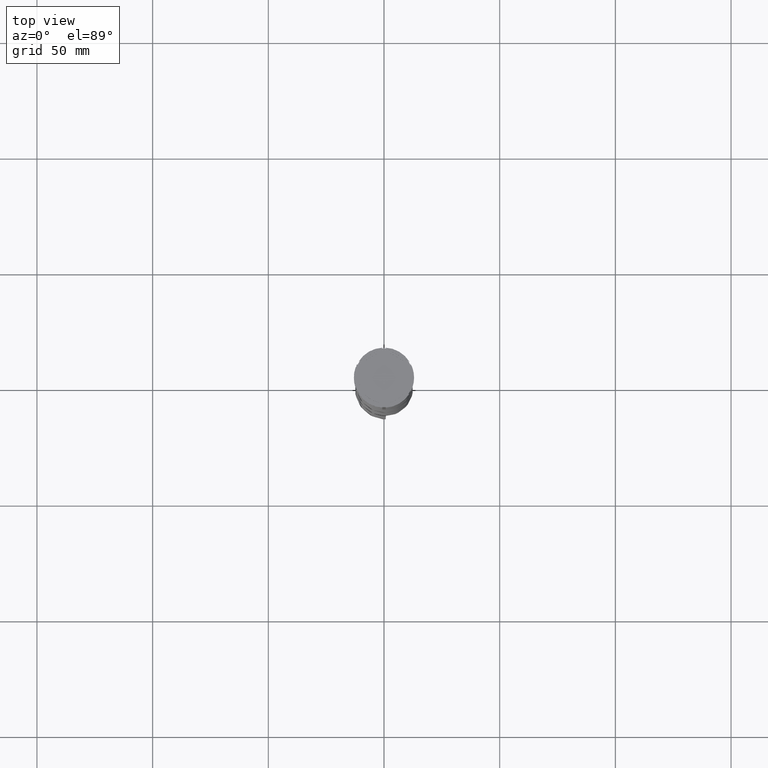
[diagram: clean part render]
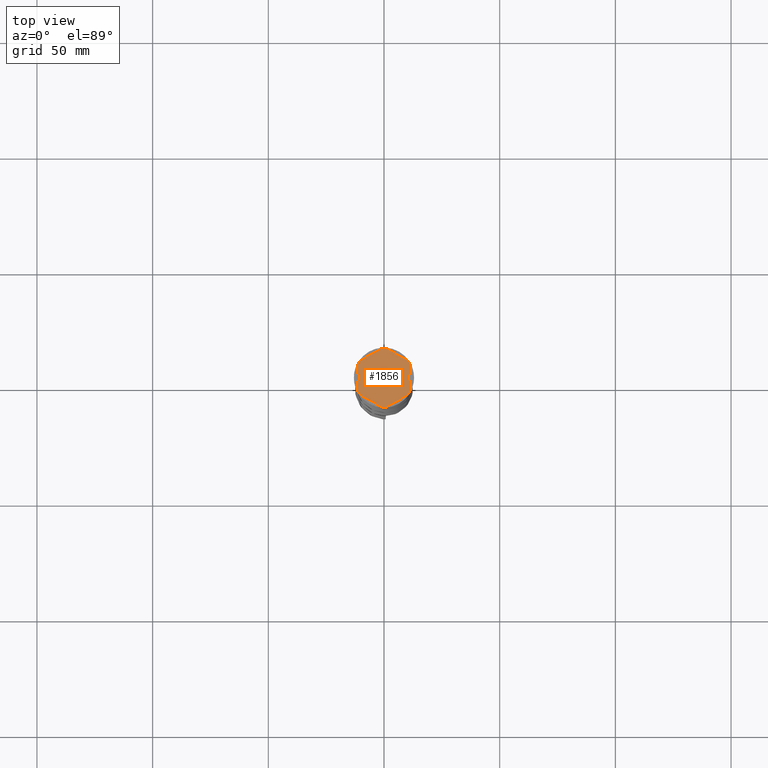
[diagram: same view with one face highlighted and labeled with its STEP entity id]
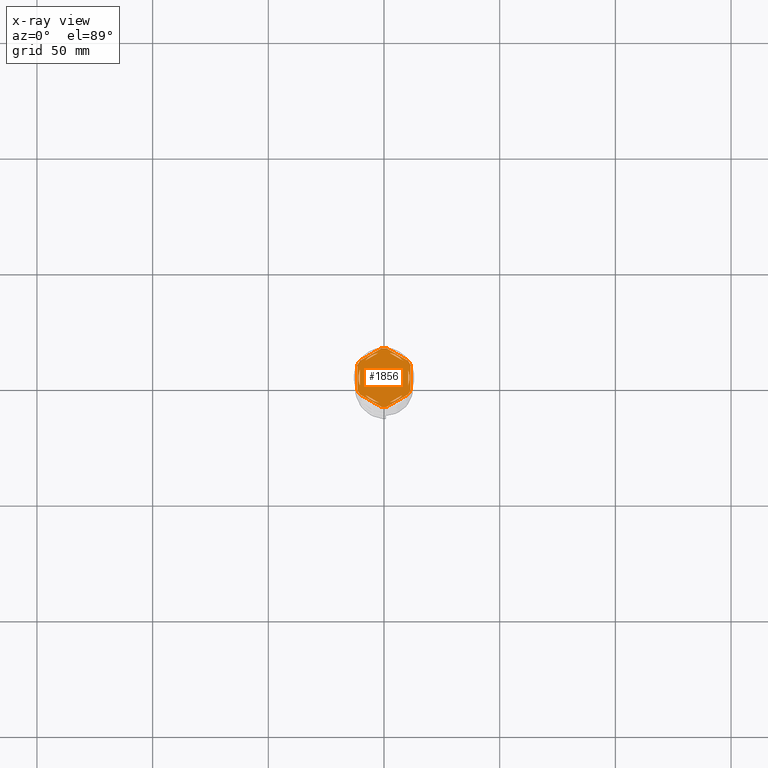
[diagram: x-ray of the same camera — body ghosted, the highlighted face saturated]
A machine part, top view. The second image highlights one B-rep face of the part: STEP entity #1856.
The next image is the same camera in x-ray: the body ghosted, the highlighted face saturated — about 0% of this face is hidden behind the body in this view.
In plain terms, the highlighted planar face has unit normal (0, 0, 1).
Its self-contained STEP definition (entity closure, byte-faithful):
#1 = VECTOR ( 'NONE', #2732, 999.9999999999998863 ) ;
#14 = VECTOR ( 'NONE', #2528, 1000.000000000000227 ) ;
#20 = ORIENTED_EDGE ( 'NONE', *, *, #1464, .F. ) ;
#43 = EDGE_CURVE ( 'NONE', #599, #1318, #3161, .T. ) ;
#91 = AXIS2_PLACEMENT_3D ( 'NONE', #1634, #3011, #3719 ) ;
#100 = CARTESIAN_POINT ( 'NONE',  ( -10.49999999999999822, -3.278719262151000624, -1.000000000000000888 ) ) ;
#103 = ORIENTED_EDGE ( 'NONE', *, *, #3396, .F. ) ;
#166 = CARTESIAN_POINT ( 'NONE',  ( 0.000000000000000000, 0.000000000000000000, -1.000000000000000000 ) ) ;
#173 = DIRECTION ( 'NONE',  ( -0.000000000000000000, -0.000000000000000000, -1.000000000000000000 ) ) ;
#187 = FACE_BOUND ( 'NONE', #1219, .T. ) ;
#195 = VERTEX_POINT ( 'NONE', #262 ) ;
#216 = ORIENTED_EDGE ( 'NONE', *, *, #3217, .F. ) ;
#220 = DIRECTION ( 'NONE',  ( -0.000000000000000000, -0.000000000000000000, -1.000000000000000000 ) ) ;
#223 = AXIS2_PLACEMENT_3D ( 'NONE', #2812, #1432, #1729 ) ;
#235 = CARTESIAN_POINT ( 'NONE',  ( 0.000000000000000000, 0.000000000000000000, -1.000000000000000000 ) ) ;
#252 = EDGE_LOOP ( 'NONE', ( #2573, #1419 ) ) ;
#262 = CARTESIAN_POINT ( 'NONE',  ( -2.410545827099867200, 10.73262637081210613, -1.000000000000000888 ) ) ;
#321 = AXIS2_PLACEMENT_3D ( 'NONE', #1000, #220, #2010 ) ;
#324 = EDGE_CURVE ( 'NONE', #2590, #3375, #443, .T. ) ;
#327 = CARTESIAN_POINT ( 'NONE',  ( -10.41690475583121689, 7.264853426459546348, -1.000000000000000000 ) ) ;
#335 = CARTESIAN_POINT ( 'NONE',  ( 11.49999999999999822, 5.388877434122992582, -1.000000000000000000 ) ) ;
#409 = EDGE_CURVE ( 'NONE', #1442, #4173, #4181, .T. ) ;
#414 = DIRECTION ( 'NONE',  ( -0.8660254037844385966, -0.5000000000000001110, 0.000000000000000000 ) ) ;
#416 = CARTESIAN_POINT ( 'NONE',  ( 2.410545827099861871, 10.73262637081210791, -1.000000000000000888 ) ) ;
#422 = CARTESIAN_POINT ( 'NONE',  ( 1.083095244168781557, 12.65373086058254160, -1.000000000000000000 ) ) ;
#424 = ORIENTED_EDGE ( 'NONE', *, *, #3630, .F. ) ;
#443 = CIRCLE ( 'NONE', #806, 11.00000000000000000 ) ;
#448 = AXIS2_PLACEMENT_3D ( 'NONE', #235, #3690, #2674 ) ;
#449 = CIRCLE ( 'NONE', #754, 11.00000000000000000 ) ;
#482 = EDGE_CURVE ( 'NONE', #599, #3599, #1248, .T. ) ;
#510 = CARTESIAN_POINT ( 'NONE',  ( 5.612359739892467248E-18, -13.27905619136138959, -1.000000000000000000 ) ) ;
#575 = DIRECTION ( 'NONE',  ( 1.000000000000000000, 0.000000000000000000, 0.000000000000000000 ) ) ;
#587 = DIRECTION ( 'NONE',  ( -0.8660254037844387076, -0.4999999999999999445, 0.000000000000000000 ) ) ;
#593 = EDGE_LOOP ( 'NONE', ( #424, #3142 ) ) ;
#595 = CIRCLE ( 'NONE', #448, 12.69999999999999929 ) ;
#599 = VERTEX_POINT ( 'NONE', #2234 ) ;
#619 = CARTESIAN_POINT ( 'NONE',  ( -10.49999999999999822, 6.062177826491068622, -1.000000000000000888 ) ) ;
#620 = CARTESIAN_POINT ( 'NONE',  ( 2.410545827099865868, -10.73262637081210791, -1.000000000000000888 ) ) ;
#622 = VERTEX_POINT ( 'NONE', #3890 ) ;
#660 = EDGE_LOOP ( 'NONE', ( #3230, #3943 ) ) ;
#689 = EDGE_CURVE ( 'NONE', #3076, #3619, #1468, .T. ) ;
#698 = DIRECTION ( 'NONE',  ( 0.000000000000000000, 0.000000000000000000, 1.000000000000000000 ) ) ;
#702 = DIRECTION ( 'NONE',  ( 1.000000000000000000, 0.000000000000000000, 0.000000000000000000 ) ) ;
#710 = LINE ( 'NONE', #967, #3503 ) ;
#746 = DIRECTION ( 'NONE',  ( 0.000000000000000000, 0.000000000000000000, 1.000000000000000000 ) ) ;
#754 = AXIS2_PLACEMENT_3D ( 'NONE', #2849, #2514, #2175 ) ;
#767 = EDGE_CURVE ( 'NONE', #3617, #1318, #595, .T. ) ;
#806 = AXIS2_PLACEMENT_3D ( 'NONE', #2431, #698, #3491 ) ;
#815 = CARTESIAN_POINT ( 'NONE',  ( -11.00000000000000000, 0.000000000000000000, -1.000000000000000000 ) ) ;
#841 = CARTESIAN_POINT ( 'NONE',  ( 10.49999999999999467, -3.278719262151014835, -1.000000000000000888 ) ) ;
#886 = VECTOR ( 'NONE', #3294, 1000.000000000000000 ) ;
#890 = DIRECTION ( 'NONE',  ( 0.000000000000000000, 0.000000000000000000, 1.000000000000000000 ) ) ;
#894 = ORIENTED_EDGE ( 'NONE', *, *, #482, .F. ) ;
#897 = ORIENTED_EDGE ( 'NONE', *, *, #43, .T. ) ;
#967 = CARTESIAN_POINT ( 'NONE',  ( 11.50000000000000000, 6.639528095680698350, -1.000000000000000000 ) ) ;
#976 = LINE ( 'NONE', #4406, #3071 ) ;
#995 = DIRECTION ( 'NONE',  ( 1.000000000000000000, -1.776356839400250465E-14, 0.000000000000000000 ) ) ;
#1000 = CARTESIAN_POINT ( 'NONE',  ( 0.000000000000000000, 0.000000000000000000, -1.000000000000000000 ) ) ;
#1087 = CARTESIAN_POINT ( 'NONE',  ( 0.000000000000000000, 13.27905619136138959, -1.000000000000000000 ) ) ;
#1134 = CARTESIAN_POINT ( 'NONE',  ( -11.50000000000000000, 6.639528095680691244, -1.000000000000000000 ) ) ;
#1215 = CARTESIAN_POINT ( 'NONE',  ( 10.41690475583121867, -7.264853426459537467, -1.000000000000000000 ) ) ;
#1219 = EDGE_LOOP ( 'NONE', ( #20, #3004, #3156 ) ) ;
#1233 = DIRECTION ( 'NONE',  ( 0.000000000000000000, 0.000000000000000000, 1.000000000000000000 ) ) ;
#1239 = CARTESIAN_POINT ( 'NONE',  ( -8.089454172900135021, 7.453907108661106840, -1.000000000000000888 ) ) ;
#1248 = CIRCLE ( 'NONE', #4372, 12.69999999999999929 ) ;
#1254 = AXIS2_PLACEMENT_3D ( 'NONE', #4117, #746, #702 ) ;
#1295 = CARTESIAN_POINT ( 'NONE',  ( 10.41690475583121156, 7.264853426459550789, -1.000000000000000000 ) ) ;
#1309 = LINE ( 'NONE', #2699, #3550 ) ;
#1318 = VERTEX_POINT ( 'NONE', #327 ) ;
#1355 = ORIENTED_EDGE ( 'NONE', *, *, #3079, .F. ) ;
#1393 = ORIENTED_EDGE ( 'NONE', *, *, #4073, .F. ) ;
#1396 = VECTOR ( 'NONE', #1882, 1000.000000000000000 ) ;
#1419 = ORIENTED_EDGE ( 'NONE', *, *, #4072, .F. ) ;
#1423 = CARTESIAN_POINT ( 'NONE',  ( -1.083095244168779780, -12.65373086058253982, -1.000000000000000000 ) ) ;
#1432 = DIRECTION ( 'NONE',  ( -0.000000000000000000, -0.000000000000000000, -1.000000000000000000 ) ) ;
#1438 = EDGE_CURVE ( 'NONE', #1871, #1757, #1507, .T. ) ;
#1442 = VERTEX_POINT ( 'NONE', #416 ) ;
#1454 = CARTESIAN_POINT ( 'NONE',  ( 11.49999999999999822, -5.388877434122996135, -1.000000000000000000 ) ) ;
#1464 = EDGE_CURVE ( 'NONE', #622, #3076, #3507, .T. ) ;
#1468 = CIRCLE ( 'NONE', #2344, 11.00000000000000000 ) ;
#1469 = CARTESIAN_POINT ( 'NONE',  ( -11.50000000000000000, 5.388877434122992582, -1.000000000000000000 ) ) ;
#1494 = DIRECTION ( 'NONE',  ( 0.8660254037844385966, 0.5000000000000001110, -0.000000000000000000 ) ) ;
#1507 = LINE ( 'NONE', #3955, #14 ) ;
#1550 = VECTOR ( 'NONE', #587, 999.9999999999998863 ) ;
#1570 = CARTESIAN_POINT ( 'NONE',  ( 10.49999999999999467, 3.278719262151012170, -1.000000000000000888 ) ) ;
#1606 = FACE_BOUND ( 'NONE', #660, .T. ) ;
#1611 = CIRCLE ( 'NONE', #223, 12.69999999999999929 ) ;
#1619 = AXIS2_PLACEMENT_3D ( 'NONE', #3854, #2050, #995 ) ;
#1634 = CARTESIAN_POINT ( 'NONE',  ( 0.000000000000000000, 0.000000000000000000, -1.000000000000000000 ) ) ;
#1664 = LINE ( 'NONE', #619, #3515 ) ;
#1704 = CARTESIAN_POINT ( 'NONE',  ( 8.089454172900135021, -7.453907108661109504, -1.000000000000000888 ) ) ;
#1711 = CARTESIAN_POINT ( 'NONE',  ( 0.000000000000000000, 0.000000000000000000, -1.000000000000000000 ) ) ;
#1729 = DIRECTION ( 'NONE',  ( 1.000000000000000000, 0.000000000000000000, 0.000000000000000000 ) ) ;
#1757 = VERTEX_POINT ( 'NONE', #1423 ) ;
#1846 = VERTEX_POINT ( 'NONE', #1215 ) ;
#1856 = ADVANCED_FACE ( 'NONE', ( #1606, #2657, #1924, #3309, #187, #2965, #4038 ), #3361, .T. ) ;
#1871 = VERTEX_POINT ( 'NONE', #3429 ) ;
#1882 = DIRECTION ( 'NONE',  ( 1.306360520641008153E-16, 1.000000000000000000, 0.000000000000000000 ) ) ;
#1885 = CARTESIAN_POINT ( 'NONE',  ( 0.000000000000000000, 0.000000000000000000, -1.000000000000000000 ) ) ;
#1924 = FACE_BOUND ( 'NONE', #252, .T. ) ;
#1941 = EDGE_LOOP ( 'NONE', ( #3075, #103, #4350, #894, #897, #2400, #3087, #1393, #2886, #1355, #2062, #3750 ) ) ;
#1983 = CIRCLE ( 'NONE', #3441, 12.69999999999999929 ) ;
#2010 = DIRECTION ( 'NONE',  ( 1.000000000000000000, 7.105427357601001859E-15, 0.000000000000000000 ) ) ;
#2050 = DIRECTION ( 'NONE',  ( -0.000000000000000000, -0.000000000000000000, -1.000000000000000000 ) ) ;
#2062 = ORIENTED_EDGE ( 'NONE', *, *, #3094, .T. ) ;
#2167 = DIRECTION ( 'NONE',  ( -0.8660254037844388186, 0.4999999999999997224, 0.000000000000000000 ) ) ;
#2169 = DIRECTION ( 'NONE',  ( 1.000000000000000000, 0.000000000000000000, 0.000000000000000000 ) ) ;
#2172 = VERTEX_POINT ( 'NONE', #2720 ) ;
#2175 = DIRECTION ( 'NONE',  ( 1.000000000000000000, 0.000000000000000000, 0.000000000000000000 ) ) ;
#2183 = EDGE_CURVE ( 'NONE', #2596, #3599, #710, .T. ) ;
#2196 = VERTEX_POINT ( 'NONE', #1454 ) ;
#2234 = CARTESIAN_POINT ( 'NONE',  ( -1.083095244168783333, 12.65373086058254160, -1.000000000000000000 ) ) ;
#2241 = EDGE_CURVE ( 'NONE', #2196, #4446, #2948, .T. ) ;
#2257 = VERTEX_POINT ( 'NONE', #3225 ) ;
#2283 = EDGE_CURVE ( 'NONE', #3617, #2257, #4274, .T. ) ;
#2309 = VERTEX_POINT ( 'NONE', #1570 ) ;
#2344 = AXIS2_PLACEMENT_3D ( 'NONE', #4000, #890, #3048 ) ;
#2355 = ORIENTED_EDGE ( 'NONE', *, *, #3470, .F. ) ;
#2389 = CARTESIAN_POINT ( 'NONE',  ( -1.734723475976807094E-15, 12.12435565298214080, -1.000000000000000888 ) ) ;
#2400 = ORIENTED_EDGE ( 'NONE', *, *, #767, .F. ) ;
#2415 = VECTOR ( 'NONE', #414, 1000.000000000000114 ) ;
#2431 = CARTESIAN_POINT ( 'NONE',  ( 0.000000000000000000, 0.000000000000000000, -1.000000000000000000 ) ) ;
#2514 = DIRECTION ( 'NONE',  ( 0.000000000000000000, 0.000000000000000000, 1.000000000000000000 ) ) ;
#2528 = DIRECTION ( 'NONE',  ( 0.8660254037844387076, -0.4999999999999997780, 0.000000000000000000 ) ) ;
#2573 = ORIENTED_EDGE ( 'NONE', *, *, #324, .F. ) ;
#2575 = CARTESIAN_POINT ( 'NONE',  ( 0.000000000000000000, 0.000000000000000000, -1.000000000000000000 ) ) ;
#2576 = DIRECTION ( 'NONE',  ( 0.000000000000000000, 0.000000000000000000, 1.000000000000000000 ) ) ;
#2590 = VERTEX_POINT ( 'NONE', #620 ) ;
#2594 = DIRECTION ( 'NONE',  ( -0.000000000000000000, -0.000000000000000000, -1.000000000000000000 ) ) ;
#2596 = VERTEX_POINT ( 'NONE', #1295 ) ;
#2657 = FACE_BOUND ( 'NONE', #3795, .T. ) ;
#2674 = DIRECTION ( 'NONE',  ( 1.000000000000000000, 0.000000000000000000, 0.000000000000000000 ) ) ;
#2699 = CARTESIAN_POINT ( 'NONE',  ( 10.49999999999999289, -6.062177826491073063, -1.000000000000000888 ) ) ;
#2709 = CIRCLE ( 'NONE', #3572, 11.00000000000000000 ) ;
#2714 = CIRCLE ( 'NONE', #321, 12.69999999999999929 ) ;
#2720 = CARTESIAN_POINT ( 'NONE',  ( 1.083095244168774673, -12.65373086058253982, -1.000000000000000000 ) ) ;
#2732 = DIRECTION ( 'NONE',  ( 0.8660254037844387076, -0.4999999999999999445, 0.000000000000000000 ) ) ;
#2748 = EDGE_CURVE ( 'NONE', #2196, #1846, #1611, .T. ) ;
#2753 = CARTESIAN_POINT ( 'NONE',  ( 10.49999999999999467, 6.062177826491072175, -1.000000000000000888 ) ) ;
#2781 = AXIS2_PLACEMENT_3D ( 'NONE', #1885, #2576, #2169 ) ;
#2812 = CARTESIAN_POINT ( 'NONE',  ( 0.000000000000000000, 0.000000000000000000, -1.000000000000000000 ) ) ;
#2849 = CARTESIAN_POINT ( 'NONE',  ( 0.000000000000000000, 0.000000000000000000, -1.000000000000000000 ) ) ;
#2876 = CARTESIAN_POINT ( 'NONE',  ( 8.089454172900138573, 7.453907108661105063, -1.000000000000000888 ) ) ;
#2886 = ORIENTED_EDGE ( 'NONE', *, *, #1438, .T. ) ;
#2895 = DIRECTION ( 'NONE',  ( 0.000000000000000000, 0.000000000000000000, 1.000000000000000000 ) ) ;
#2925 = EDGE_CURVE ( 'NONE', #2972, #2309, #2709, .T. ) ;
#2927 = ORIENTED_EDGE ( 'NONE', *, *, #2925, .F. ) ;
#2948 = LINE ( 'NONE', #3589, #1396 ) ;
#2965 = FACE_BOUND ( 'NONE', #593, .T. ) ;
#2972 = VERTEX_POINT ( 'NONE', #841 ) ;
#3004 = ORIENTED_EDGE ( 'NONE', *, *, #4026, .F. ) ;
#3011 = DIRECTION ( 'NONE',  ( 0.000000000000000000, 0.000000000000000000, 1.000000000000000000 ) ) ;
#3048 = DIRECTION ( 'NONE',  ( 1.000000000000000000, 0.000000000000000000, 0.000000000000000000 ) ) ;
#3061 = DIRECTION ( 'NONE',  ( -1.430775808321104180E-16, -1.000000000000000000, 0.000000000000000000 ) ) ;
#3071 = VECTOR ( 'NONE', #4388, 1000.000000000000000 ) ;
#3073 = AXIS2_PLACEMENT_3D ( 'NONE', #166, #1233, #575 ) ;
#3075 = ORIENTED_EDGE ( 'NONE', *, *, #2241, .T. ) ;
#3076 = VERTEX_POINT ( 'NONE', #815 ) ;
#3079 = EDGE_CURVE ( 'NONE', #2172, #1757, #1983, .T. ) ;
#3087 = ORIENTED_EDGE ( 'NONE', *, *, #2283, .T. ) ;
#3094 = EDGE_CURVE ( 'NONE', #2172, #1846, #4249, .T. ) ;
#3142 = ORIENTED_EDGE ( 'NONE', *, *, #3547, .F. ) ;
#3156 = ORIENTED_EDGE ( 'NONE', *, *, #689, .F. ) ;
#3161 = LINE ( 'NONE', #1087, #2415 ) ;
#3196 = CARTESIAN_POINT ( 'NONE',  ( 0.000000000000000000, 0.000000000000000000, -1.000000000000000000 ) ) ;
#3217 = EDGE_CURVE ( 'NONE', #3940, #3377, #976, .T. ) ;
#3225 = CARTESIAN_POINT ( 'NONE',  ( -11.50000000000000000, -5.388877434122992582, -1.000000000000000000 ) ) ;
#3230 = ORIENTED_EDGE ( 'NONE', *, *, #3777, .F. ) ;
#3279 = ORIENTED_EDGE ( 'NONE', *, *, #4326, .F. ) ;
#3294 = DIRECTION ( 'NONE',  ( 0.000000000000000000, -1.000000000000000000, 0.000000000000000000 ) ) ;
#3309 = FACE_BOUND ( 'NONE', #3451, .T. ) ;
#3361 = PLANE ( 'NONE',  #91 ) ;
#3375 = VERTEX_POINT ( 'NONE', #1704 ) ;
#3377 = VERTEX_POINT ( 'NONE', #3431 ) ;
#3393 = CARTESIAN_POINT ( 'NONE',  ( -2.602085213965210642E-15, -12.12435565298214080, -1.000000000000000888 ) ) ;
#3396 = EDGE_CURVE ( 'NONE', #2596, #4446, #4455, .T. ) ;
#3403 = CARTESIAN_POINT ( 'NONE',  ( -2.410545827099876082, -10.73262637081210435, -1.000000000000000888 ) ) ;
#3429 = CARTESIAN_POINT ( 'NONE',  ( -10.41690475583121334, -7.264853426459548125, -1.000000000000000000 ) ) ;
#3431 = CARTESIAN_POINT ( 'NONE',  ( -8.089454172900133244, -7.453907108661111280, -1.000000000000000888 ) ) ;
#3441 = AXIS2_PLACEMENT_3D ( 'NONE', #3196, #173, #3588 ) ;
#3445 = CIRCLE ( 'NONE', #3073, 11.00000000000000000 ) ;
#3451 = EDGE_LOOP ( 'NONE', ( #2355, #216 ) ) ;
#3470 = EDGE_CURVE ( 'NONE', #3377, #3940, #3649, .T. ) ;
#3491 = DIRECTION ( 'NONE',  ( 1.000000000000000000, 0.000000000000000000, 0.000000000000000000 ) ) ;
#3503 = VECTOR ( 'NONE', #2167, 1000.000000000000000 ) ;
#3507 = CIRCLE ( 'NONE', #2781, 11.00000000000000000 ) ;
#3515 = VECTOR ( 'NONE', #4433, 1000.000000000000000 ) ;
#3547 = EDGE_CURVE ( 'NONE', #4418, #195, #3835, .T. ) ;
#3550 = VECTOR ( 'NONE', #3061, 1000.000000000000000 ) ;
#3572 = AXIS2_PLACEMENT_3D ( 'NONE', #1711, #2895, #3609 ) ;
#3588 = DIRECTION ( 'NONE',  ( 1.000000000000000000, 0.000000000000000000, 0.000000000000000000 ) ) ;
#3589 = CARTESIAN_POINT ( 'NONE',  ( 11.49999999999999822, -6.639528095680694797, -1.000000000000000000 ) ) ;
#3599 = VERTEX_POINT ( 'NONE', #422 ) ;
#3609 = DIRECTION ( 'NONE',  ( 1.000000000000000000, 0.000000000000000000, 0.000000000000000000 ) ) ;
#3617 = VERTEX_POINT ( 'NONE', #1469 ) ;
#3619 = VERTEX_POINT ( 'NONE', #100 ) ;
#3630 = EDGE_CURVE ( 'NONE', #195, #4418, #449, .T. ) ;
#3649 = CIRCLE ( 'NONE', #1254, 11.00000000000000000 ) ;
#3690 = DIRECTION ( 'NONE',  ( -0.000000000000000000, -0.000000000000000000, -1.000000000000000000 ) ) ;
#3719 = DIRECTION ( 'NONE',  ( 1.000000000000000000, 0.000000000000000000, -0.000000000000000000 ) ) ;
#3750 = ORIENTED_EDGE ( 'NONE', *, *, #2748, .F. ) ;
#3777 = EDGE_CURVE ( 'NONE', #4173, #1442, #3445, .T. ) ;
#3795 = EDGE_LOOP ( 'NONE', ( #2927, #3279 ) ) ;
#3835 = LINE ( 'NONE', #2389, #4090 ) ;
#3854 = CARTESIAN_POINT ( 'NONE',  ( 0.000000000000000000, 0.000000000000000000, -1.000000000000000000 ) ) ;
#3890 = CARTESIAN_POINT ( 'NONE',  ( -10.49999999999999822, 3.278719262151000624, -1.000000000000000888 ) ) ;
#3940 = VERTEX_POINT ( 'NONE', #3403 ) ;
#3943 = ORIENTED_EDGE ( 'NONE', *, *, #409, .F. ) ;
#3955 = CARTESIAN_POINT ( 'NONE',  ( -11.50000000000000000, -6.639528095680696573, -1.000000000000000000 ) ) ;
#3975 = DIRECTION ( 'NONE',  ( 1.000000000000000000, 1.243449787580175325E-14, 0.000000000000000000 ) ) ;
#4000 = CARTESIAN_POINT ( 'NONE',  ( 0.000000000000000000, 0.000000000000000000, -1.000000000000000000 ) ) ;
#4026 = EDGE_CURVE ( 'NONE', #3619, #622, #1664, .T. ) ;
#4038 = FACE_OUTER_BOUND ( 'NONE', #1941, .T. ) ;
#4067 = LINE ( 'NONE', #3393, #1550 ) ;
#4072 = EDGE_CURVE ( 'NONE', #3375, #2590, #4067, .T. ) ;
#4073 = EDGE_CURVE ( 'NONE', #1871, #2257, #2714, .T. ) ;
#4090 = VECTOR ( 'NONE', #1494, 1000.000000000000000 ) ;
#4117 = CARTESIAN_POINT ( 'NONE',  ( 0.000000000000000000, 0.000000000000000000, -1.000000000000000000 ) ) ;
#4173 = VERTEX_POINT ( 'NONE', #2876 ) ;
#4181 = LINE ( 'NONE', #2753, #1 ) ;
#4249 = LINE ( 'NONE', #510, #4302 ) ;
#4274 = LINE ( 'NONE', #1134, #886 ) ;
#4302 = VECTOR ( 'NONE', #4318, 1000.000000000000114 ) ;
#4318 = DIRECTION ( 'NONE',  ( 0.8660254037844385966, 0.4999999999999999445, 0.000000000000000000 ) ) ;
#4326 = EDGE_CURVE ( 'NONE', #2309, #2972, #1309, .T. ) ;
#4350 = ORIENTED_EDGE ( 'NONE', *, *, #2183, .T. ) ;
#4372 = AXIS2_PLACEMENT_3D ( 'NONE', #2575, #2594, #3975 ) ;
#4388 = DIRECTION ( 'NONE',  ( -0.8660254037844384856, 0.5000000000000002220, 0.000000000000000000 ) ) ;
#4406 = CARTESIAN_POINT ( 'NONE',  ( -10.49999999999999822, -6.062177826491068622, -1.000000000000000888 ) ) ;
#4418 = VERTEX_POINT ( 'NONE', #1239 ) ;
#4433 = DIRECTION ( 'NONE',  ( 0.000000000000000000, 1.000000000000000000, 0.000000000000000000 ) ) ;
#4446 = VERTEX_POINT ( 'NONE', #335 ) ;
#4455 = CIRCLE ( 'NONE', #1619, 12.69999999999999929 ) ;